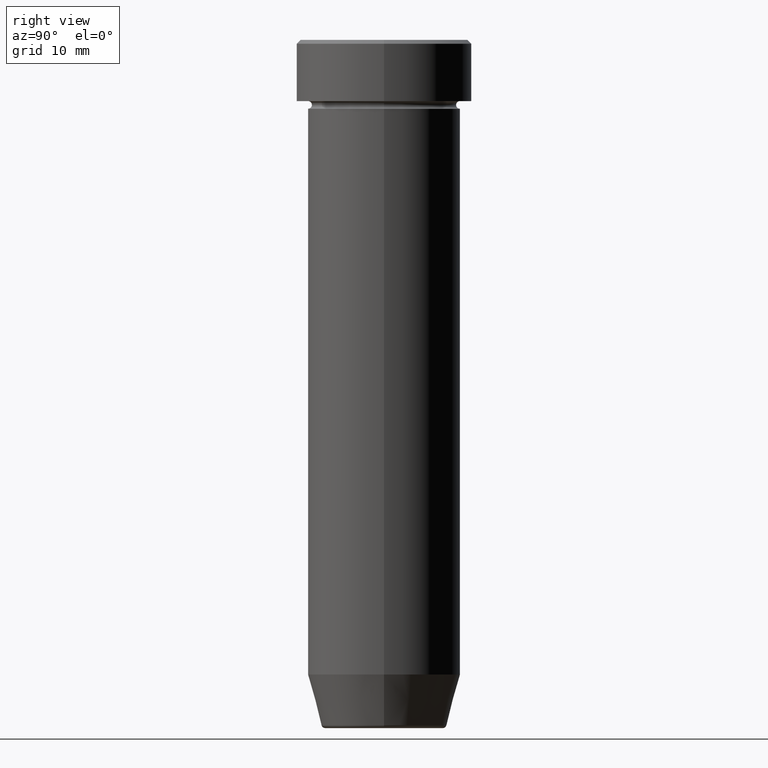
[diagram: clean part render]
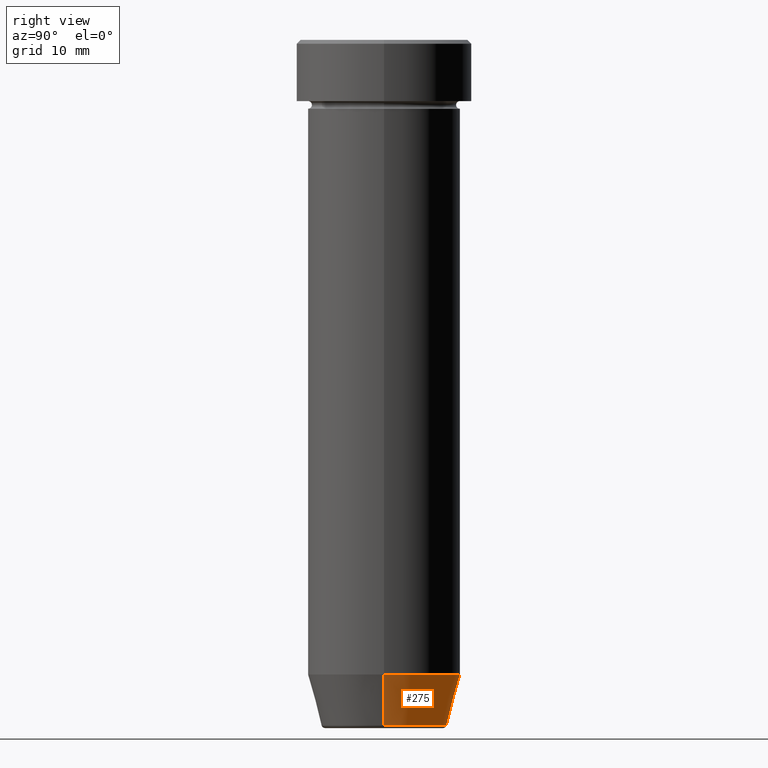
[diagram: same view with one face highlighted and labeled with its STEP entity id]
A machine part, right view. The second image highlights one B-rep face of the part: STEP entity #275.
In plain terms, the highlighted conical surface has half-angle 15 deg.
Its self-contained STEP definition (entity closure, byte-faithful):
#24 = DIRECTION ( 'NONE',  ( -1.000000000000000000, 0.000000000000000000, 0.000000000000000000 ) ) ;
#49 = EDGE_CURVE ( 'NONE', #373, #92, #310, .T. ) ;
#72 = CARTESIAN_POINT ( 'NONE',  ( 0.000000000000000000, 0.000000000000000000, -82.99999999999998579 ) ) ;
#92 = VERTEX_POINT ( 'NONE', #308 ) ;
#97 = EDGE_CURVE ( 'NONE', #344, #373, #583, .T. ) ;
#102 = VERTEX_POINT ( 'NONE', #580 ) ;
#117 = VECTOR ( 'NONE', #576, 1000.000000000000114 ) ;
#139 = DIRECTION ( 'NONE',  ( 1.000000000000000000, 0.000000000000000000, 0.000000000000000000 ) ) ;
#142 = EDGE_CURVE ( 'NONE', #102, #92, #480, .T. ) ;
#145 = ORIENTED_EDGE ( 'NONE', *, *, #97, .T. ) ;
#200 = CARTESIAN_POINT ( 'NONE',  ( 8.223655072137185940, 0.000000000000000000, -89.62940952255125637 ) ) ;
#202 = CARTESIAN_POINT ( 'NONE',  ( 8.124355652982131915, 0.000000000000000000, -90.00000000000000000 ) ) ;
#203 = ORIENTED_EDGE ( 'NONE', *, *, #49, .T. ) ;
#204 = AXIS2_PLACEMENT_3D ( 'NONE', #372, #456, #139 ) ;
#226 = FACE_OUTER_BOUND ( 'NONE', #466, .T. ) ;
#242 = ORIENTED_EDGE ( 'NONE', *, *, #464, .F. ) ;
#275 = ADVANCED_FACE ( 'NONE', ( #226 ), #338, .T. ) ;
#308 = CARTESIAN_POINT ( 'NONE',  ( -9.999999999999998224, 1.224646799147353059E-15, -82.99999999999998579 ) ) ;
#310 = LINE ( 'NONE', #496, #117 ) ;
#338 = CONICAL_SURFACE ( 'NONE', #204, 8.124355652982131915, 0.2617993877991502405 ) ;
#341 = AXIS2_PLACEMENT_3D ( 'NONE', #72, #538, #446 ) ;
#344 = VERTEX_POINT ( 'NONE', #200 ) ;
#372 = CARTESIAN_POINT ( 'NONE',  ( 0.000000000000000000, 0.000000000000000000, -90.00000000000000000 ) ) ;
#373 = VERTEX_POINT ( 'NONE', #421 ) ;
#401 = DIRECTION ( 'NONE',  ( -0.000000000000000000, -0.000000000000000000, 1.000000000000000000 ) ) ;
#415 = VECTOR ( 'NONE', #569, 1000.000000000000114 ) ;
#419 = AXIS2_PLACEMENT_3D ( 'NONE', #443, #401, #24 ) ;
#421 = CARTESIAN_POINT ( 'NONE',  ( -8.223655072137185940, 1.115877042642911659E-15, -89.62940952255125637 ) ) ;
#443 = CARTESIAN_POINT ( 'NONE',  ( 0.000000000000000000, 0.000000000000000000, -89.62940952255125637 ) ) ;
#446 = DIRECTION ( 'NONE',  ( 1.000000000000000000, 0.000000000000000000, 0.000000000000000000 ) ) ;
#456 = DIRECTION ( 'NONE',  ( -0.000000000000000000, -0.000000000000000000, 1.000000000000000000 ) ) ;
#464 = EDGE_CURVE ( 'NONE', #344, #102, #560, .T. ) ;
#466 = EDGE_LOOP ( 'NONE', ( #145, #203, #554, #242 ) ) ;
#480 = CIRCLE ( 'NONE', #341, 9.999999999999998224 ) ;
#496 = CARTESIAN_POINT ( 'NONE',  ( -8.124355652982131915, 9.949466145559272639E-16, -90.00000000000000000 ) ) ;
#538 = DIRECTION ( 'NONE',  ( -0.000000000000000000, -0.000000000000000000, 1.000000000000000000 ) ) ;
#554 = ORIENTED_EDGE ( 'NONE', *, *, #142, .F. ) ;
#560 = LINE ( 'NONE', #202, #415 ) ;
#569 = DIRECTION ( 'NONE',  ( 0.2588190451025214611, 0.000000000000000000, 0.9659258262890679791 ) ) ;
#576 = DIRECTION ( 'NONE',  ( -0.2588190451025214611, 3.169619151431774186E-17, 0.9659258262890679791 ) ) ;
#580 = CARTESIAN_POINT ( 'NONE',  ( 9.999999999999998224, 0.000000000000000000, -82.99999999999998579 ) ) ;
#583 = CIRCLE ( 'NONE', #419, 8.223655072137185940 ) ;